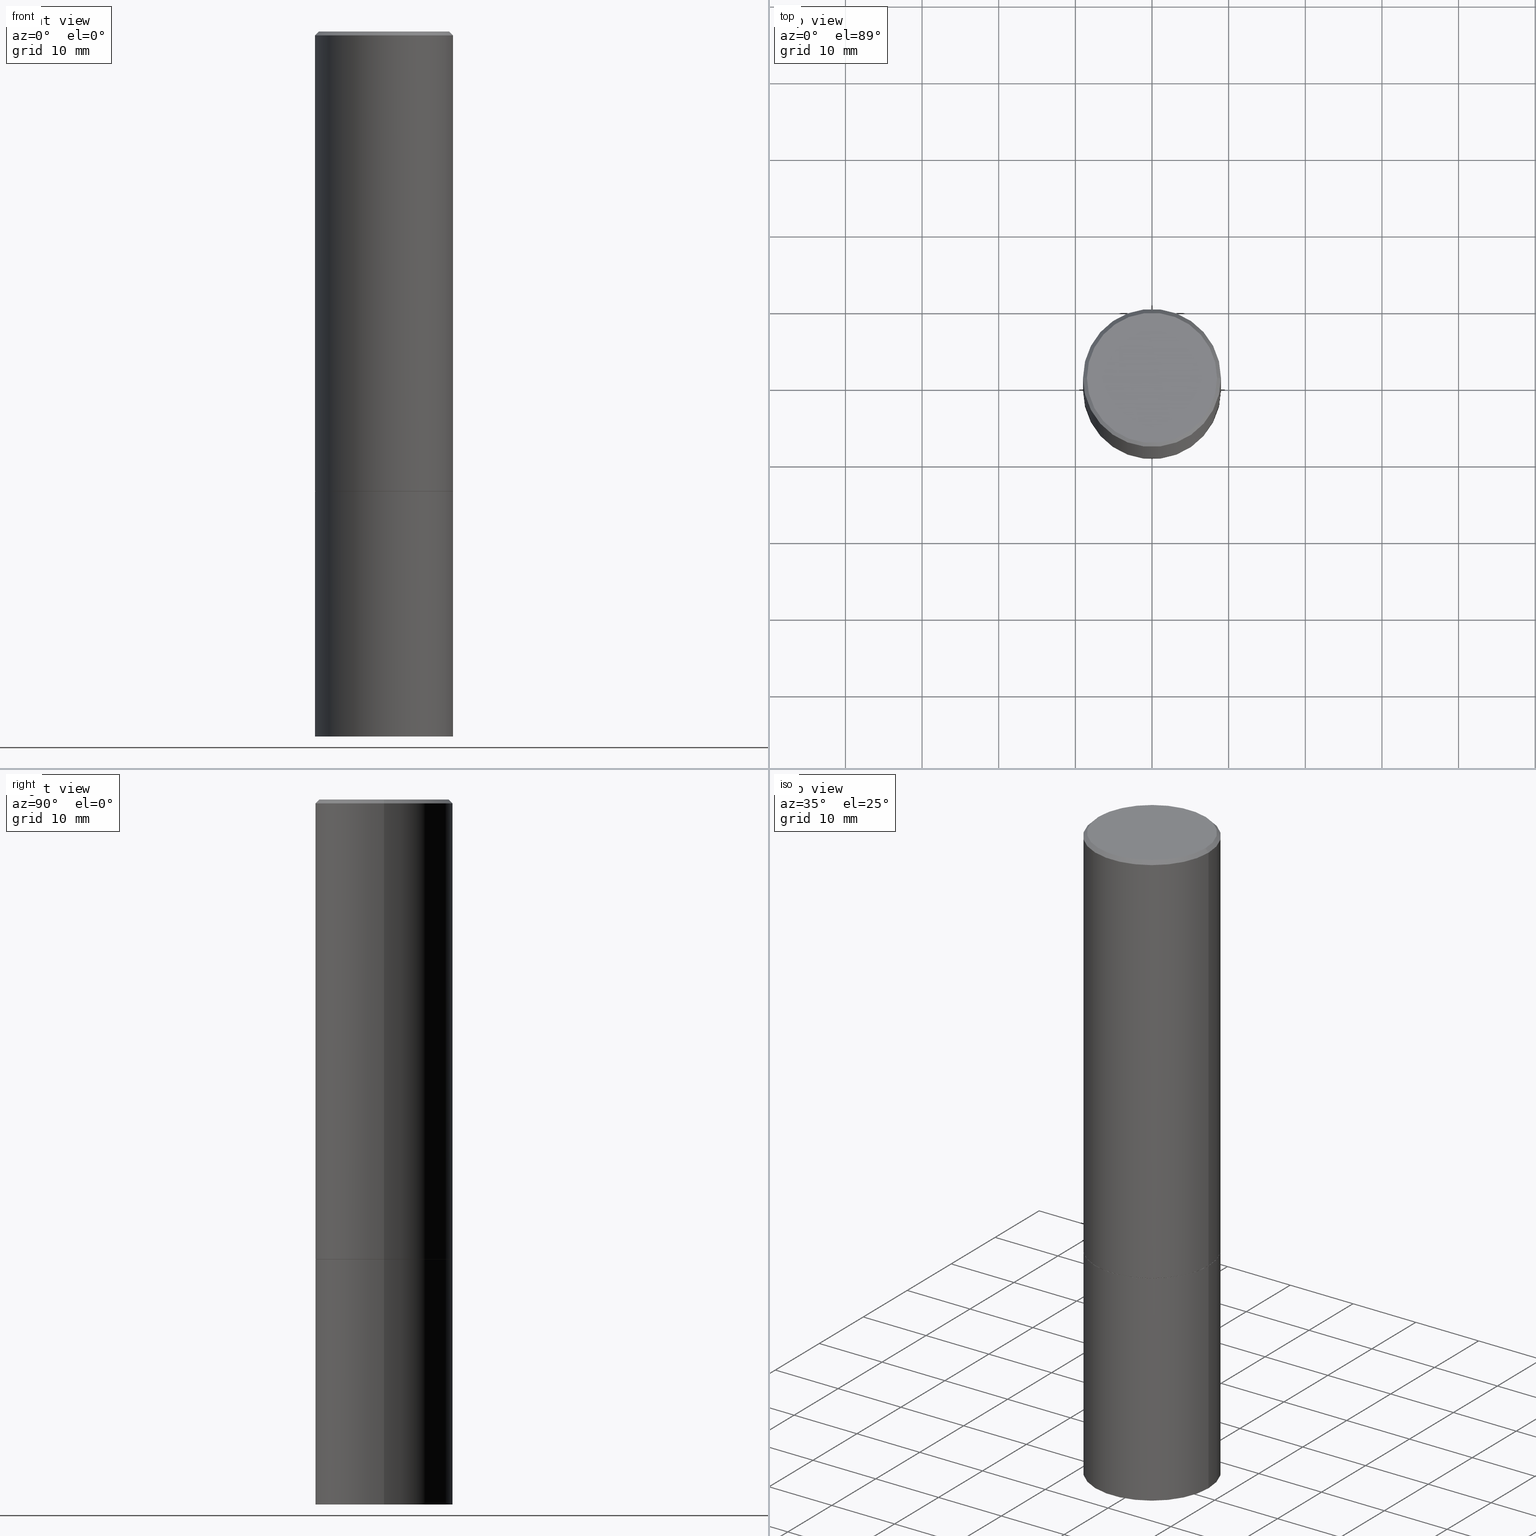
[diagram: canonical four-view strip — front | top / right | iso, engineering-drawing reading convention]
A machine part, canonical four-view strip (front | top / right | iso — engineering-drawing reading convention). The complete STEP part file that produces these views, byte-faithful:
ISO-10303-21;
HEADER;
FILE_DESCRIPTION (( 'STEP AP203' ),
    '1' );
FILE_NAME ('46508.STEP',
    '2024-02-28T10:46:28',
    ( '' ),
    ( '' ),
    'SwSTEP 2.0',
    'SolidWorks 2023',
    '' );
FILE_SCHEMA (( 'CONFIG_CONTROL_DESIGN' ));
ENDSEC;

DATA;
#1 = DIRECTION ( 'NONE',  ( -1.000000000000000000, 6.982962677686266711E-15, 0.000000000000000000 ) ) ;
#2 = CIRCLE ( 'NONE', #217, 0.3543499999999999983 ) ;
#3 = PERSON_AND_ORGANIZATION_ROLE ( 'classification_officer' ) ;
#4 = LOCAL_TIME ( 5, 46, 28.00000000000000000, #65 ) ;
#5 = AXIS2_PLACEMENT_3D ( 'NONE', #328, #147, #117 ) ;
#6 = EDGE_LOOP ( 'NONE', ( #148, #81, #83, #33 ) ) ;
#7 = PERSON_AND_ORGANIZATION ( #289, #312 ) ;
#8 = ORIENTED_EDGE ( 'NONE', *, *, #339, .F. ) ;
#9 = DIRECTION ( 'NONE',  ( 1.000000000000000000, -6.982962677686266711E-15, 4.876061227832602160E-29 ) ) ;
#10 = DATE_AND_TIME ( #59, #271 ) ;
#11 = LINE ( 'NONE', #246, #237 ) ;
#12 = AXIS2_PLACEMENT_3D ( 'NONE', #63, #54, #227 ) ;
#13 = DIRECTION ( 'NONE',  ( 1.000000000000000000, -6.982962677686265922E-15, 0.000000000000000000 ) ) ;
#14 = CARTESIAN_POINT ( 'NONE',  ( 0.3533499999999999974, -1.071500708077572033E-14, -2.362199999999999633 ) ) ;
#15 = EDGE_CURVE ( 'NONE', #64, #85, #42, .T. ) ;
#16 = CARTESIAN_POINT ( 'NONE',  ( -0.3543499999999999983, -7.929053129786659628E-15, -2.362199999999999633 ) ) ;
#17 = CIRCLE ( 'NONE', #269, 0.3543499999999997208 ) ;
#18 = DIRECTION ( 'NONE',  ( -0.7071067811866199593, 7.493145998870616062E-15, 0.7071067811864750752 ) ) ;
#19 = PLANE ( 'NONE',  #354 ) ;
#20 = EDGE_CURVE ( 'NONE', #210, #85, #11, .T. ) ;
#21 = DIRECTION ( 'NONE',  ( -2.445468806185136597E-29, 3.491481338843145583E-15, 1.000000000000000000 ) ) ;
#22 = VECTOR ( 'NONE', #348, 39.37007874015748143 ) ;
#23 = CYLINDRICAL_SURFACE ( 'NONE', #12, 0.3543499999999998873 ) ;
#24 = APPLICATION_PROTOCOL_DEFINITION ( 'international standard', 'config_control_design', 1994, #215 ) ;
#25 = ADVANCED_FACE ( 'NONE', ( #187 ), #91, .T. ) ;
#26 = DIRECTION ( 'NONE',  ( 1.000000000000000000, 0.000000000000000000, 0.000000000000000000 ) ) ;
#27 = EDGE_LOOP ( 'NONE', ( #338, #343 ) ) ;
#28 = AXIS2_PLACEMENT_3D ( 'NONE', #221, #281, #333 ) ;
#29 = EDGE_LOOP ( 'NONE', ( #265, #167, #302, #58 ) ) ;
#30 = PERSON_AND_ORGANIZATION_ROLE ( 'design_owner' ) ;
#31 = ORIENTED_EDGE ( 'NONE', *, *, #314, .F. ) ;
#32 = EDGE_CURVE ( 'NONE', #174, #112, #243, .T. ) ;
#33 = ORIENTED_EDGE ( 'NONE', *, *, #15, .T. ) ;
#34 = CIRCLE ( 'NONE', #130, 0.3543499999999999983 ) ;
#35 = MANIFOLD_SOLID_BREP ( 'Body-Move/Copy2[1]', #188 ) ;
#36 = ORIENTED_EDGE ( 'NONE', *, *, #78, .T. ) ;
#37 = DIRECTION ( 'NONE',  ( -2.445468806185136597E-29, 3.491481338843145583E-15, 1.000000000000000000 ) ) ;
#38 = DATE_TIME_ROLE ( 'classification_date' ) ;
#39 = ORIENTED_EDGE ( 'NONE', *, *, #100, .F. ) ;
#40 = CARTESIAN_POINT ( 'NONE',  ( -0.3543499999999997208, 2.404583198061263424E-15, -0.02000000000000008021 ) ) ;
#41 = FACE_OUTER_BOUND ( 'NONE', #104, .T. ) ;
#42 = CIRCLE ( 'NONE', #255, 0.3543499999999997208 ) ;
#43 = EDGE_LOOP ( 'NONE', ( #77, #266 ) ) ;
#44 = AXIS2_PLACEMENT_3D ( 'NONE', #48, #331, #190 ) ;
#45 = CARTESIAN_POINT ( 'NONE',  ( 0.3543499999999998873, -2.474412824838127905E-15, 1.727873240503289188E-29 ) ) ;
#46 = DIRECTION ( 'NONE',  ( 1.000000000000000000, -6.982962677686267499E-15, 0.000000000000000000 ) ) ;
#47 = CARTESIAN_POINT ( 'NONE',  ( 5.776686413970528632E-29, -8.247577218615276471E-15, -2.362199999999999633 ) ) ;
#48 = CARTESIAN_POINT ( 'NONE',  ( 5.776686413970529753E-29, -8.247577218615278049E-15, -2.362199999999999633 ) ) ;
#49 = APPROVAL_PERSON_ORGANIZATION ( #140, #111, #92 ) ;
#50 = CARTESIAN_POINT ( 'NONE',  ( 0.000000000000000000, 0.000000000000000000, 0.000000000000000000 ) ) ;
#51 = ADVANCED_FACE ( 'NONE', ( #67 ), #93, .F. ) ;
#52 = DIRECTION ( 'NONE',  ( 1.000000000000000000, -6.982962677686265922E-15, 0.000000000000000000 ) ) ;
#53 = DESIGN_CONTEXT ( 'detailed design', #235, 'design' ) ;
#54 = DIRECTION ( 'NONE',  ( -2.445468806185136597E-29, 3.491481338843145583E-15, 1.000000000000000000 ) ) ;
#55 = CIRCLE ( 'NONE', #44, 0.3543499999999999983 ) ;
#56 = CARTESIAN_POINT ( 'NONE',  ( -1.043851414335219820E-46, 1.490343170380447200E-32, 4.268512490100411279E-18 ) ) ;
#57 = EDGE_CURVE ( 'NONE', #112, #258, #98, .T. ) ;
#58 = ORIENTED_EDGE ( 'NONE', *, *, #32, .F. ) ;
#59 = CALENDAR_DATE ( 2024, 28, 2 ) ;
#60 = ORIENTED_EDGE ( 'NONE', *, *, #32, .T. ) ;
#61 = DIRECTION ( 'NONE',  ( -2.445468806185136877E-29, 3.491481338843145188E-15, 1.000000000000000000 ) ) ;
#62 = CIRCLE ( 'NONE', #253, 0.3533499999999999974 ) ;
#63 = CARTESIAN_POINT ( 'NONE',  ( 0.000000000000000000, 0.000000000000000000, 0.000000000000000000 ) ) ;
#64 = VERTEX_POINT ( 'NONE', #40 ) ;
#65 = COORDINATED_UNIVERSAL_TIME_OFFSET ( 5, 0, .BEHIND. ) ;
#66 = PLANE ( 'NONE',  #223 ) ;
#67 = FACE_OUTER_BOUND ( 'NONE', #165, .T. ) ;
#68 = CARTESIAN_POINT ( 'NONE',  ( 5.774240945164344150E-29, -8.244085737276433464E-15, -2.361199999999999743 ) ) ;
#69 = VECTOR ( 'NONE', #61, 39.37007874015748143 ) ;
#70 = CYLINDRICAL_SURFACE ( 'NONE', #87, 0.3543499999999999983 ) ;
#71 = DIRECTION ( 'NONE',  ( -1.000000000000000000, 6.982962677686266711E-15, 0.000000000000000000 ) ) ;
#72 = FACE_OUTER_BOUND ( 'NONE', #185, .T. ) ;
#73 = DIRECTION ( 'NONE',  ( -2.445468806185136597E-29, 3.491481338843145583E-15, 1.000000000000000000 ) ) ;
#74 = CLOSED_SHELL ( 'NONE', ( #209, #156, #122, #304, #332, #178, #211, #105 ) ) ;
#75 = DIRECTION ( 'NONE',  ( 1.000000000000000000, -6.982962677686265922E-15, 0.000000000000000000 ) ) ;
#76 = PERSON_AND_ORGANIZATION ( #289, #312 ) ;
#77 = ORIENTED_EDGE ( 'NONE', *, *, #200, .F. ) ;
#78 = EDGE_CURVE ( 'NONE', #112, #85, #151, .T. ) ;
#79 =( LENGTH_UNIT ( ) NAMED_UNIT ( * ) SI_UNIT ( $, .METRE. ) );
#80 = VECTOR ( 'NONE', #97, 39.37007874015748143 ) ;
#81 = ORIENTED_EDGE ( 'NONE', *, *, #308, .F. ) ;
#82 = PERSON_AND_ORGANIZATION_ROLE ( 'creator' ) ;
#83 = ORIENTED_EDGE ( 'NONE', *, *, #241, .T. ) ;
#84 = DIRECTION ( 'NONE',  ( -2.445468806185136877E-29, 3.491481338843145188E-15, 1.000000000000000000 ) ) ;
#85 = VERTEX_POINT ( 'NONE', #313 ) ;
#86 = EDGE_CURVE ( 'NONE', #298, #259, #179, .T. ) ;
#87 = AXIS2_PLACEMENT_3D ( 'NONE', #50, #21, #249 ) ;
#88 = FACE_OUTER_BOUND ( 'NONE', #234, .T. ) ;
#89 = PERSON_AND_ORGANIZATION ( #289, #312 ) ;
#90 = CALENDAR_DATE ( 2024, 28, 2 ) ;
#91 = CYLINDRICAL_SURFACE ( 'NONE', #5, 0.3543499999999999983 ) ;
#92 = APPROVAL_ROLE ( '' ) ;
#93 = PLANE ( 'NONE',  #219 ) ;
#94 = DIRECTION ( 'NONE',  ( 2.438088387897960049E-29, -3.491481338843145188E-15, -1.000000000000000000 ) ) ;
#95 = ADVANCED_BREP_SHAPE_REPRESENTATION ( '46508', ( #35, #161, #96 ), #172 ) ;
#96 = AXIS2_PLACEMENT_3D ( 'NONE', #108, #166, #26 ) ;
#97 = DIRECTION ( 'NONE',  ( -0.7071067811865471286, 2.468850131082252722E-15, -0.7071067811865479058 ) ) ;
#98 = CIRCLE ( 'NONE', #144, 0.3543499999999999983 ) ;
#99 = DIRECTION ( 'NONE',  ( -2.445468806185136597E-29, 3.491481338843145583E-15, 1.000000000000000000 ) ) ;
#100 = EDGE_CURVE ( 'NONE', #210, #270, #175, .T. ) ;
#101 = LINE ( 'NONE', #154, #321 ) ;
#102 = LINE ( 'NONE', #306, #80 ) ;
#103 = FACE_OUTER_BOUND ( 'NONE', #142, .T. ) ;
#104 = EDGE_LOOP ( 'NONE', ( #139, #261 ) ) ;
#105 = ADVANCED_FACE ( 'NONE', ( #41 ), #66, .F. ) ;
#106 = CALENDAR_DATE ( 2024, 28, 2 ) ;
#107 = SECURITY_CLASSIFICATION ( '', '', #207 ) ;
#108 = CARTESIAN_POINT ( 'NONE',  ( 0.000000000000000000, 0.000000000000000000, 0.000000000000000000 ) ) ;
#109 = ORIENTED_EDGE ( 'NONE', *, *, #267, .F. ) ;
#110 = ORIENTED_EDGE ( 'NONE', *, *, #236, .F. ) ;
#111 = APPROVAL ( #238, 'UNSPECIFIED' ) ;
#112 = VERTEX_POINT ( 'NONE', #121 ) ;
#113 = APPROVAL_DATE_TIME ( #213, #111 ) ;
#114 = ORIENTED_EDGE ( 'NONE', *, *, #200, .T. ) ;
#115 = PERSON_AND_ORGANIZATION ( #289, #312 ) ;
#116 = ORIENTED_EDGE ( 'NONE', *, *, #257, .T. ) ;
#117 = DIRECTION ( 'NONE',  ( 1.000000000000000000, -6.982962677686266711E-15, 4.876176775795935793E-29 ) ) ;
#118 = LOCAL_TIME ( 5, 46, 28.00000000000000000, #296 ) ;
#119 = APPROVAL_DATE_TIME ( #300, #297 ) ;
#120 = CARTESIAN_POINT ( 'NONE',  ( 2.474412824838185886E-15, 0.3543499999999917272, -2.362200000000000966 ) ) ;
#121 = CARTESIAN_POINT ( 'NONE',  ( 0.3543499999999999983, -1.071849856211456176E-14, -2.361199999999999743 ) ) ;
#122 = ADVANCED_FACE ( 'NONE', ( #88 ), #286, .T. ) ;
#123 = PLANE ( 'NONE',  #303 ) ;
#124 = CC_DESIGN_DATE_AND_TIME_ASSIGNMENT ( #293, #38, ( #107 ) ) ;
#125 = AXIS2_PLACEMENT_3D ( 'NONE', #352, #99, #155 ) ;
#126 = CARTESIAN_POINT ( 'NONE',  ( 5.776686413970529753E-29, -8.247577218615278049E-15, -2.362199999999999633 ) ) ;
#127 = FACE_OUTER_BOUND ( 'NONE', #316, .T. ) ;
#128 = DIRECTION ( 'NONE',  ( 1.000000000000000000, -6.982962677686268288E-15, 0.000000000000000000 ) ) ;
#129 = CARTESIAN_POINT ( 'NONE',  ( 2.474412824838217047E-15, 0.3543499999999873973, -3.622000000000000774 ) ) ;
#130 = AXIS2_PLACEMENT_3D ( 'NONE', #275, #189, #128 ) ;
#131 = ORIENTED_EDGE ( 'NONE', *, *, #236, .T. ) ;
#132 = EDGE_LOOP ( 'NONE', ( #201, #320, #240, #110 ) ) ;
#133 = PERSON_AND_ORGANIZATION ( #289, #312 ) ;
#134 = ORIENTED_EDGE ( 'NONE', *, *, #267, .T. ) ;
#135 = PRODUCT_DEFINITION_SHAPE ( 'NONE', 'NONE',  #344 ) ;
#136 = CC_DESIGN_DATE_AND_TIME_ASSIGNMENT ( #10, #264, ( #344 ) ) ;
#137 =( NAMED_UNIT ( * ) SI_UNIT ( $, .STERADIAN. ) SOLID_ANGLE_UNIT ( ) );
#138 = UNCERTAINTY_MEASURE_WITH_UNIT (LENGTH_MEASURE( 1.000000000000000082E-05 ), #254, 'distance_accuracy_value', 'NONE');
#139 = ORIENTED_EDGE ( 'NONE', *, *, #308, .T. ) ;
#140 = PERSON_AND_ORGANIZATION ( #289, #312 ) ;
#141 = EDGE_CURVE ( 'NONE', #364, #258, #101, .T. ) ;
#142 = EDGE_LOOP ( 'NONE', ( #198, #299, #36, #318 ) ) ;
#143 = DIMENSIONAL_EXPONENTS ( 1.000000000000000000, 0.000000000000000000, 0.000000000000000000, 0.000000000000000000, 0.000000000000000000, 0.000000000000000000, 0.000000000000000000 ) ;
#144 = AXIS2_PLACEMENT_3D ( 'NONE', #68, #153, #13 ) ;
#145 = SHAPE_DEFINITION_REPRESENTATION ( #135, #95 ) ;
#146 = DIRECTION ( 'NONE',  ( -2.445468806185136597E-29, 3.491481338843145583E-15, 1.000000000000000000 ) ) ;
#147 = DIRECTION ( 'NONE',  ( -2.445468806185136597E-29, 3.491481338843145583E-15, 1.000000000000000000 ) ) ;
#148 = ORIENTED_EDGE ( 'NONE', *, *, #20, .F. ) ;
#149 = CC_DESIGN_APPROVAL ( #297, ( #323 ) ) ;
#150 = CIRCLE ( 'NONE', #28, 0.3543499999999999983 ) ;
#151 = LINE ( 'NONE', #45, #330 ) ;
#152 = DIRECTION ( 'NONE',  ( 2.438088387897960049E-29, -3.491481338843145188E-15, -1.000000000000000000 ) ) ;
#153 = DIRECTION ( 'NONE',  ( -2.445468806185136597E-29, 3.491481338843145583E-15, 1.000000000000000000 ) ) ;
#154 = CARTESIAN_POINT ( 'NONE',  ( -0.3533499999999999974, -5.736874461806963666E-15, -2.362199999999999633 ) ) ;
#155 = DIRECTION ( 'NONE',  ( 1.000000000000000000, -6.982962677686267499E-15, 0.000000000000000000 ) ) ;
#156 = ADVANCED_FACE ( 'NONE', ( #127 ), #309, .T. ) ;
#157 = CARTESIAN_POINT ( 'NONE',  ( -0.3343499999999996475, 2.369668384672832169E-15, 4.268512490083961526E-18 ) ) ;
#158 = PRODUCT_RELATED_PRODUCT_CATEGORY ( 'detail', '', ( #163 ) ) ;
#159 = CARTESIAN_POINT ( 'NONE',  ( 5.774240945164344150E-29, -8.244085737276433464E-15, -2.361199999999999743 ) ) ;
#160 = DIRECTION ( 'NONE',  ( 1.000000000000000000, -6.982962677686265922E-15, 4.876176775795935793E-29 ) ) ;
#161 = MANIFOLD_SOLID_BREP ( 'Body-Move/Copy2[2]', #74 ) ;
#162 = CC_DESIGN_PERSON_AND_ORGANIZATION_ASSIGNMENT ( #315, #30, ( #163 ) ) ;
#163 = PRODUCT ( '46508', '46508', '', ( #203 ) ) ;
#164 = VECTOR ( 'NONE', #327, 39.37007874015748143 ) ;
#165 = EDGE_LOOP ( 'NONE', ( #134, #131 ) ) ;
#166 = DIRECTION ( 'NONE',  ( 0.000000000000000000, 0.000000000000000000, 1.000000000000000000 ) ) ;
#167 = ORIENTED_EDGE ( 'NONE', *, *, #141, .T. ) ;
#168 = APPROVAL_DATE_TIME ( #361, #186 ) ;
#169 = EDGE_CURVE ( 'NONE', #258, #112, #2, .T. ) ;
#170 = ORIENTED_EDGE ( 'NONE', *, *, #241, .F. ) ;
#171 = LENGTH_MEASURE_WITH_UNIT ( LENGTH_MEASURE( 0.02539999999999999897 ), #79 );
#172 =( GEOMETRIC_REPRESENTATION_CONTEXT ( 3 ) GLOBAL_UNCERTAINTY_ASSIGNED_CONTEXT ( ( #138 ) ) GLOBAL_UNIT_ASSIGNED_CONTEXT ( ( #254, #287, #137 ) ) REPRESENTATION_CONTEXT ( 'NONE', 'WORKASPACE' ) );
#173 = CC_DESIGN_SECURITY_CLASSIFICATION ( #107, ( #323 ) ) ;
#174 = VERTEX_POINT ( 'NONE', #14 ) ;
#175 = CIRCLE ( 'NONE', #248, 0.3343499999999996475 ) ;
#176 = DIRECTION ( 'NONE',  ( 2.445468806185136597E-29, -3.491481338843145583E-15, -1.000000000000000000 ) ) ;
#177 = PERSON_AND_ORGANIZATION_ROLE ( 'design_supplier' ) ;
#178 = ADVANCED_FACE ( 'NONE', ( #334 ), #322, .T. ) ;
#179 = LINE ( 'NONE', #295, #22 ) ;
#180 = AXIS2_PLACEMENT_3D ( 'NONE', #56, #311, #342 ) ;
#181 = COORDINATED_UNIVERSAL_TIME_OFFSET ( 5, 0, .BEHIND. ) ;
#182 = DIRECTION ( 'NONE',  ( 0.7071067811865471286, -7.319954787623254468E-15, -0.7071067811865479058 ) ) ;
#183 = CALENDAR_DATE ( 2024, 28, 2 ) ;
#184 = CARTESIAN_POINT ( 'NONE',  ( 2.334753571284400520E-15, 0.3343499999999996475, -1.165242529397154385E-15 ) ) ;
#185 = EDGE_LOOP ( 'NONE', ( #114, #341, #109, #31 ) ) ;
#186 = APPROVAL ( #363, 'UNSPECIFIED' ) ;
#187 = FACE_OUTER_BOUND ( 'NONE', #132, .T. ) ;
#188 = CLOSED_SHELL ( 'NONE', ( #229, #251, #51, #25 ) ) ;
#189 = DIRECTION ( 'NONE',  ( -2.445468806185136597E-29, 3.491481338843145583E-15, 1.000000000000000000 ) ) ;
#190 = DIRECTION ( 'NONE',  ( 1.000000000000000000, -6.982962677686268288E-15, 0.000000000000000000 ) ) ;
#191 = DIRECTION ( 'NONE',  ( -2.438088387897960049E-29, 3.491481338843145188E-15, 1.000000000000000000 ) ) ;
#192 = AXIS2_PLACEMENT_3D ( 'NONE', #208, #305, #71 ) ;
#193 = CARTESIAN_POINT ( 'NONE',  ( 8.857488016002564476E-29, -1.264614540928987199E-14, -3.621999999999999886 ) ) ;
#194 = DIRECTION ( 'NONE',  ( -2.445468806185136597E-29, 3.491481338843145583E-15, 1.000000000000000000 ) ) ;
#195 = EDGE_CURVE ( 'NONE', #174, #364, #62, .T. ) ;
#196 = CARTESIAN_POINT ( 'NONE',  ( 4.890937612370293302E-31, -6.982962677686318726E-17, -0.02000000000000008021 ) ) ;
#197 = AXIS2_PLACEMENT_3D ( 'NONE', #329, #194, #356 ) ;
#198 = ORIENTED_EDGE ( 'NONE', *, *, #365, .F. ) ;
#199 = APPLICATION_PROTOCOL_DEFINITION ( 'international standard', 'config_control_design', 1994, #235 ) ;
#200 = EDGE_CURVE ( 'NONE', #205, #298, #282, .T. ) ;
#201 = ORIENTED_EDGE ( 'NONE', *, *, #86, .F. ) ;
#202 = LINE ( 'NONE', #283, #69 ) ;
#203 = MECHANICAL_CONTEXT ( 'NONE', #215, 'mechanical' ) ;
#204 = CONICAL_SURFACE ( 'NONE', #272, 0.3543499999999997208, 0.7853981633974477239 ) ;
#205 = VERTEX_POINT ( 'NONE', #355 ) ;
#206 = APPROVAL_PERSON_ORGANIZATION ( #133, #186, #226 ) ;
#207 = SECURITY_CLASSIFICATION_LEVEL ( 'unclassified' ) ;
#208 = CARTESIAN_POINT ( 'NONE',  ( 4.890937612370293302E-31, -6.982962677686318726E-17, -0.02000000000000008021 ) ) ;
#209 = ADVANCED_FACE ( 'NONE', ( #276 ), #301, .T. ) ;
#210 = VERTEX_POINT ( 'NONE', #357 ) ;
#211 = ADVANCED_FACE ( 'NONE', ( #310 ), #19, .F. ) ;
#212 = CARTESIAN_POINT ( 'NONE',  ( 0.3533499999999999974, -1.071500708077572033E-14, -2.362199999999999633 ) ) ;
#213 = DATE_AND_TIME ( #90, #118 ) ;
#214 = DIRECTION ( 'NONE',  ( -1.000000000000000000, 6.982962677686265922E-15, -4.876176775795935793E-29 ) ) ;
#215 = APPLICATION_CONTEXT ( 'configuration controlled 3d designs of mechanical parts and assemblies' ) ;
#216 = DIRECTION ( 'NONE',  ( 1.000000000000000000, -6.982962677686267499E-15, 0.000000000000000000 ) ) ;
#217 = AXIS2_PLACEMENT_3D ( 'NONE', #159, #252, #75 ) ;
#218 = EDGE_CURVE ( 'NONE', #298, #205, #150, .T. ) ;
#219 = AXIS2_PLACEMENT_3D ( 'NONE', #120, #351, #214 ) ;
#220 = CARTESIAN_POINT ( 'NONE',  ( -0.3543499999999999983, -1.639149497860731807E-15, -2.361199999999999743 ) ) ;
#221 = CARTESIAN_POINT ( 'NONE',  ( 8.857488016002564476E-29, -1.264614540928987199E-14, -3.621999999999999886 ) ) ;
#222 = CARTESIAN_POINT ( 'NONE',  ( 0.000000000000000000, 0.000000000000000000, 0.000000000000000000 ) ) ;
#223 = AXIS2_PLACEMENT_3D ( 'NONE', #184, #152, #273 ) ;
#224 = DIRECTION ( 'NONE',  ( 1.000000000000000000, -6.982962677686266711E-15, 4.876176775795935232E-29 ) ) ;
#225 = VECTOR ( 'NONE', #340, 39.37007874015748143 ) ;
#226 = APPROVAL_ROLE ( '' ) ;
#227 = DIRECTION ( 'NONE',  ( 1.000000000000000000, -6.982962677686266711E-15, 4.876176775795935232E-29 ) ) ;
#228 = ORIENTED_EDGE ( 'NONE', *, *, #365, .T. ) ;
#229 = ADVANCED_FACE ( 'NONE', ( #72 ), #70, .T. ) ;
#230 = CARTESIAN_POINT ( 'NONE',  ( -0.3543499999999999983, -7.929053129786659628E-15, -3.621999999999999886 ) ) ;
#231 = CC_DESIGN_APPROVAL ( #111, ( #107 ) ) ;
#232 = CC_DESIGN_PERSON_AND_ORGANIZATION_ASSIGNMENT ( #89, #177, ( #323 ) ) ;
#233 = FACE_OUTER_BOUND ( 'NONE', #6, .T. ) ;
#234 = EDGE_LOOP ( 'NONE', ( #39, #324, #274, #170 ) ) ;
#235 = APPLICATION_CONTEXT ( 'configuration controlled 3d designs of mechanical parts and assemblies' ) ;
#236 = EDGE_CURVE ( 'NONE', #259, #292, #34, .T. ) ;
#237 = VECTOR ( 'NONE', #182, 39.37007874015748143 ) ;
#238 = APPROVAL_STATUS ( 'not_yet_approved' ) ;
#239 = CARTESIAN_POINT ( 'NONE',  ( 4.890937612370293302E-31, -6.982962677686318726E-17, -0.02000000000000008021 ) ) ;
#240 = ORIENTED_EDGE ( 'NONE', *, *, #314, .T. ) ;
#241 = EDGE_CURVE ( 'NONE', #270, #64, #102, .T. ) ;
#242 = AXIS2_PLACEMENT_3D ( 'NONE', #193, #250, #52 ) ;
#243 = LINE ( 'NONE', #212, #164 ) ;
#244 = LOCAL_TIME ( 5, 46, 28.00000000000000000, #181 ) ;
#245 = CC_DESIGN_PERSON_AND_ORGANIZATION_ASSIGNMENT ( #115, #3, ( #107 ) ) ;
#246 = CARTESIAN_POINT ( 'NONE',  ( 0.3543499999999997208, -2.500847092287203718E-15, -0.02000000000000008021 ) ) ;
#247 = CARTESIAN_POINT ( 'NONE',  ( 5.776686413970528632E-29, -8.247577218615276471E-15, -2.362199999999999633 ) ) ;
#248 = AXIS2_PLACEMENT_3D ( 'NONE', #326, #146, #9 ) ;
#249 = DIRECTION ( 'NONE',  ( 1.000000000000000000, -6.982962677686266711E-15, 4.876176775795935793E-29 ) ) ;
#250 = DIRECTION ( 'NONE',  ( -2.445468806185136597E-29, 3.491481338843145583E-15, 1.000000000000000000 ) ) ;
#251 = ADVANCED_FACE ( 'NONE', ( #336 ), #123, .T. ) ;
#252 = DIRECTION ( 'NONE',  ( -2.445468806185136597E-29, 3.491481338843145583E-15, 1.000000000000000000 ) ) ;
#253 = AXIS2_PLACEMENT_3D ( 'NONE', #47, #73, #46 ) ;
#254 =( CONVERSION_BASED_UNIT ( 'INCH', #171 ) LENGTH_UNIT ( ) NAMED_UNIT ( #143 ) );
#255 = AXIS2_PLACEMENT_3D ( 'NONE', #239, #37, #347 ) ;
#256 = CARTESIAN_POINT ( 'NONE',  ( -0.3543499999999998873, 2.517808184165914208E-15, -1.743024649231825225E-29 ) ) ;
#257 = EDGE_CURVE ( 'NONE', #364, #174, #294, .T. ) ;
#258 = VERTEX_POINT ( 'NONE', #220 ) ;
#259 = VERTEX_POINT ( 'NONE', #16 ) ;
#260 = CARTESIAN_POINT ( 'NONE',  ( 4.890937612370293302E-31, -6.982962677686318726E-17, -0.02000000000000008021 ) ) ;
#261 = ORIENTED_EDGE ( 'NONE', *, *, #100, .T. ) ;
#262 = CALENDAR_DATE ( 2024, 28, 2 ) ;
#263 = ORIENTED_EDGE ( 'NONE', *, *, #78, .F. ) ;
#264 = DATE_TIME_ROLE ( 'creation_date' ) ;
#265 = ORIENTED_EDGE ( 'NONE', *, *, #195, .T. ) ;
#266 = ORIENTED_EDGE ( 'NONE', *, *, #218, .F. ) ;
#267 = EDGE_CURVE ( 'NONE', #292, #259, #55, .T. ) ;
#268 = APPROVAL_STATUS ( 'not_yet_approved' ) ;
#269 = AXIS2_PLACEMENT_3D ( 'NONE', #260, #337, #285 ) ;
#270 = VERTEX_POINT ( 'NONE', #157 ) ;
#271 = LOCAL_TIME ( 5, 46, 28.00000000000000000, #317 ) ;
#272 = AXIS2_PLACEMENT_3D ( 'NONE', #196, #176, #1 ) ;
#273 = DIRECTION ( 'NONE',  ( -1.000000000000000000, 6.982962677686265922E-15, -4.876176775795935793E-29 ) ) ;
#274 = ORIENTED_EDGE ( 'NONE', *, *, #339, .T. ) ;
#275 = CARTESIAN_POINT ( 'NONE',  ( 5.776686413970529753E-29, -8.247577218615278049E-15, -2.362199999999999633 ) ) ;
#276 = FACE_OUTER_BOUND ( 'NONE', #29, .T. ) ;
#277 = CARTESIAN_POINT ( 'NONE',  ( 0.3543499999999999983, -1.072199004345340635E-14, -2.362199999999999633 ) ) ;
#278 = CC_DESIGN_PERSON_AND_ORGANIZATION_ASSIGNMENT ( #76, #82, ( #344 ) ) ;
#279 = DIRECTION ( 'NONE',  ( -2.445468806185136597E-29, 3.491481338843145583E-15, 1.000000000000000000 ) ) ;
#280 = CC_DESIGN_PERSON_AND_ORGANIZATION_ASSIGNMENT ( #325, #350, ( #323 ) ) ;
#281 = DIRECTION ( 'NONE',  ( -2.445468806185136597E-29, 3.491481338843145583E-15, 1.000000000000000000 ) ) ;
#282 = CIRCLE ( 'NONE', #242, 0.3543499999999999983 ) ;
#283 = CARTESIAN_POINT ( 'NONE',  ( 0.3543499999999999983, -2.474412824838128694E-15, 1.727873240503289749E-29 ) ) ;
#284 = COORDINATED_UNIVERSAL_TIME_OFFSET ( 5, 0, .BEHIND. ) ;
#285 = DIRECTION ( 'NONE',  ( 1.000000000000000000, -6.982962677686266711E-15, 0.000000000000000000 ) ) ;
#286 = CONICAL_SURFACE ( 'NONE', #192, 0.3543499999999997208, 0.7853981633974477239 ) ;
#287 =( NAMED_UNIT ( * ) PLANE_ANGLE_UNIT ( ) SI_UNIT ( $, .RADIAN. ) );
#288 = ORIENTED_EDGE ( 'NONE', *, *, #57, .T. ) ;
#289 = PERSON ( 'UNSPECIFIED', 'UNSPECIFIED', 'UNSPECIFIED', ('UNSPECIFIED'), ('UNSPECIFIED'), ('UNSPECIFIED') ) ;
#290 = ORIENTED_EDGE ( 'NONE', *, *, #141, .F. ) ;
#291 = APPROVAL_ROLE ( '' ) ;
#292 = VERTEX_POINT ( 'NONE', #277 ) ;
#293 = DATE_AND_TIME ( #183, #4 ) ;
#294 = CIRCLE ( 'NONE', #346, 0.3533499999999999974 ) ;
#295 = CARTESIAN_POINT ( 'NONE',  ( -0.3543499999999999983, 2.517808184165914997E-15, -1.743024649231826066E-29 ) ) ;
#296 = COORDINATED_UNIVERSAL_TIME_OFFSET ( 5, 0, .BEHIND. ) ;
#297 = APPROVAL ( #268, 'UNSPECIFIED' ) ;
#298 = VERTEX_POINT ( 'NONE', #230 ) ;
#299 = ORIENTED_EDGE ( 'NONE', *, *, #169, .T. ) ;
#300 = DATE_AND_TIME ( #262, #244 ) ;
#301 = CONICAL_SURFACE ( 'NONE', #197, 0.3533499999999999974, 0.7853981633975507526 ) ;
#302 = ORIENTED_EDGE ( 'NONE', *, *, #57, .F. ) ;
#303 = AXIS2_PLACEMENT_3D ( 'NONE', #129, #94, #307 ) ;
#304 = ADVANCED_FACE ( 'NONE', ( #233 ), #204, .T. ) ;
#305 = DIRECTION ( 'NONE',  ( 2.445468806185136597E-29, -3.491481338843145583E-15, -1.000000000000000000 ) ) ;
#306 = CARTESIAN_POINT ( 'NONE',  ( -0.3543499999999997208, 2.404583198061263424E-15, -0.02000000000000008021 ) ) ;
#307 = DIRECTION ( 'NONE',  ( -1.000000000000000000, 6.982962677686265922E-15, -4.876176775795935793E-29 ) ) ;
#308 = EDGE_CURVE ( 'NONE', #270, #210, #360, .T. ) ;
#309 = CYLINDRICAL_SURFACE ( 'NONE', #335, 0.3543499999999998873 ) ;
#310 = FACE_OUTER_BOUND ( 'NONE', #27, .T. ) ;
#311 = DIRECTION ( 'NONE',  ( -2.445468806185136597E-29, 3.491481338843145583E-15, 1.000000000000000000 ) ) ;
#312 = ORGANIZATION ( 'UNSPECIFIED', 'UNSPECIFIED', '' ) ;
#313 = CARTESIAN_POINT ( 'NONE',  ( 0.3543499999999997208, -2.500847092287203718E-15, -0.02000000000000008021 ) ) ;
#314 = EDGE_CURVE ( 'NONE', #205, #292, #202, .T. ) ;
#315 = PERSON_AND_ORGANIZATION ( #289, #312 ) ;
#316 = EDGE_LOOP ( 'NONE', ( #288, #228, #8, #263 ) ) ;
#317 = COORDINATED_UNIVERSAL_TIME_OFFSET ( 5, 0, .BEHIND. ) ;
#318 = ORIENTED_EDGE ( 'NONE', *, *, #15, .F. ) ;
#319 = CARTESIAN_POINT ( 'NONE',  ( -0.3533499999999999974, -5.731576007458741264E-15, -2.362199999999999633 ) ) ;
#320 = ORIENTED_EDGE ( 'NONE', *, *, #218, .T. ) ;
#321 = VECTOR ( 'NONE', #18, 39.37007874015748143 ) ;
#322 = CONICAL_SURFACE ( 'NONE', #125, 0.3533499999999999974, 0.7853981633975507526 ) ;
#323 = PRODUCT_DEFINITION_FORMATION_WITH_SPECIFIED_SOURCE ( 'ANY', '', #163, .NOT_KNOWN. ) ;
#324 = ORIENTED_EDGE ( 'NONE', *, *, #20, .T. ) ;
#325 = PERSON_AND_ORGANIZATION ( #289, #312 ) ;
#326 = CARTESIAN_POINT ( 'NONE',  ( -1.043851414335219820E-46, 1.490343170380447200E-32, 4.268512490100411279E-18 ) ) ;
#327 = DIRECTION ( 'NONE',  ( 0.7071067811866199593, -2.468850131083015945E-15, 0.7071067811864750752 ) ) ;
#328 = CARTESIAN_POINT ( 'NONE',  ( 0.000000000000000000, 0.000000000000000000, 0.000000000000000000 ) ) ;
#329 = CARTESIAN_POINT ( 'NONE',  ( 5.776686413970528632E-29, -8.247577218615276471E-15, -2.362199999999999633 ) ) ;
#330 = VECTOR ( 'NONE', #84, 39.37007874015748143 ) ;
#331 = DIRECTION ( 'NONE',  ( -2.445468806185136597E-29, 3.491481338843145583E-15, 1.000000000000000000 ) ) ;
#332 = ADVANCED_FACE ( 'NONE', ( #103 ), #23, .T. ) ;
#333 = DIRECTION ( 'NONE',  ( 1.000000000000000000, -6.982962677686265922E-15, 0.000000000000000000 ) ) ;
#334 = FACE_OUTER_BOUND ( 'NONE', #362, .T. ) ;
#335 = AXIS2_PLACEMENT_3D ( 'NONE', #222, #279, #224 ) ;
#336 = FACE_OUTER_BOUND ( 'NONE', #43, .T. ) ;
#337 = DIRECTION ( 'NONE',  ( -2.445468806185136597E-29, 3.491481338843145583E-15, 1.000000000000000000 ) ) ;
#338 = ORIENTED_EDGE ( 'NONE', *, *, #195, .F. ) ;
#339 = EDGE_CURVE ( 'NONE', #85, #64, #17, .T. ) ;
#340 = DIRECTION ( 'NONE',  ( -2.445468806185136877E-29, 3.491481338843145188E-15, 1.000000000000000000 ) ) ;
#341 = ORIENTED_EDGE ( 'NONE', *, *, #86, .T. ) ;
#342 = DIRECTION ( 'NONE',  ( 1.000000000000000000, -6.982962677686266711E-15, 4.876061227832602160E-29 ) ) ;
#343 = ORIENTED_EDGE ( 'NONE', *, *, #257, .F. ) ;
#344 = PRODUCT_DEFINITION ( 'UNKNOWN', '', #323, #53 ) ;
#345 = ORIENTED_EDGE ( 'NONE', *, *, #169, .F. ) ;
#346 = AXIS2_PLACEMENT_3D ( 'NONE', #247, #353, #216 ) ;
#347 = DIRECTION ( 'NONE',  ( 1.000000000000000000, -6.982962677686266711E-15, 0.000000000000000000 ) ) ;
#348 = DIRECTION ( 'NONE',  ( -2.445468806185136877E-29, 3.491481338843145188E-15, 1.000000000000000000 ) ) ;
#349 = LOCAL_TIME ( 5, 46, 28.00000000000000000, #284 ) ;
#350 = PERSON_AND_ORGANIZATION_ROLE ( 'creator' ) ;
#351 = DIRECTION ( 'NONE',  ( 2.438088387897960049E-29, -3.491481338843145188E-15, -1.000000000000000000 ) ) ;
#352 = CARTESIAN_POINT ( 'NONE',  ( 5.776686413970528632E-29, -8.247577218615276471E-15, -2.362199999999999633 ) ) ;
#353 = DIRECTION ( 'NONE',  ( -2.445468806185136597E-29, 3.491481338843145583E-15, 1.000000000000000000 ) ) ;
#354 = AXIS2_PLACEMENT_3D ( 'NONE', #126, #191, #160 ) ;
#355 = CARTESIAN_POINT ( 'NONE',  ( 0.3543499999999999983, -1.512055823412800029E-14, -3.621999999999999886 ) ) ;
#356 = DIRECTION ( 'NONE',  ( 1.000000000000000000, -6.982962677686267499E-15, 0.000000000000000000 ) ) ;
#357 = CARTESIAN_POINT ( 'NONE',  ( 0.3343499999999996475, -2.397327298921056737E-15, 4.268512490116958099E-18 ) ) ;
#358 = CC_DESIGN_APPROVAL ( #186, ( #344 ) ) ;
#359 = APPROVAL_PERSON_ORGANIZATION ( #7, #297, #291 ) ;
#360 = CIRCLE ( 'NONE', #180, 0.3343499999999996475 ) ;
#361 = DATE_AND_TIME ( #106, #349 ) ;
#362 = EDGE_LOOP ( 'NONE', ( #290, #116, #60, #345 ) ) ;
#363 = APPROVAL_STATUS ( 'not_yet_approved' ) ;
#364 = VERTEX_POINT ( 'NONE', #319 ) ;
#365 = EDGE_CURVE ( 'NONE', #258, #64, #366, .T. ) ;
#366 = LINE ( 'NONE', #256, #225 ) ;
ENDSEC;
END-ISO-10303-21;
